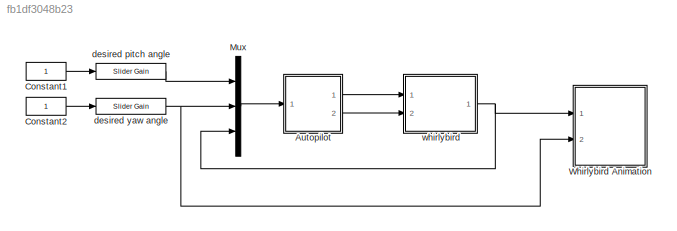
MODEL slx_fb1df3048b23
KIND model
CONFIG InitFcn = param
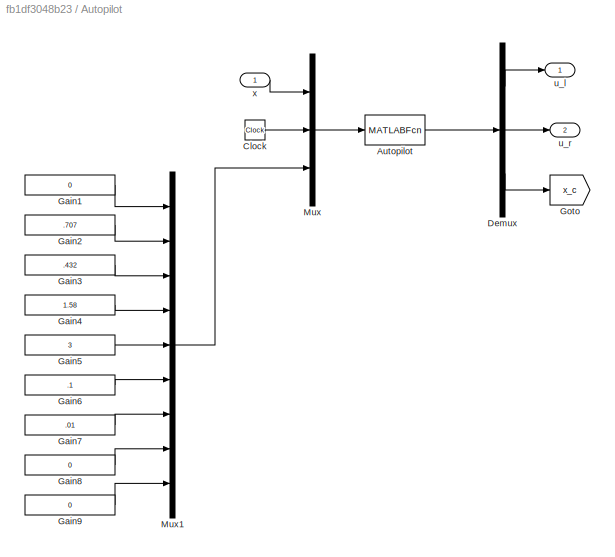
BLOCK [SubSystem] Autopilot
  FunctionWithSeparateData = off
  MaskHideContents = off
  MinAlgLoopOccurrences = off
  Opaque = off
  Ports = [1, 2]
  PropExecContextOutsideSubsystem = off
  RTWSystemCode = Auto
  RequestExecContextInheritance = off
BLOCK [MATLABFcn] Autopilot/Autopilot
  MATLABFcn = autopilot(u)
  OutputDimensions = 2+10
  Ports = [1, 1]
  SampleTime = P.Ts
BLOCK [Clock] Autopilot/Clock
BLOCK [Demux] Autopilot/Demux
  DisplayOption = bar
  Outputs = [1;1;10]
  Ports = [1, 3]
BLOCK [Constant] Autopilot/Gain1
  Value = 0
  VectorParams1D = off
BLOCK [Constant] Autopilot/Gain2
  Value = .707
  VectorParams1D = off
BLOCK [Constant] Autopilot/Gain3
  Value = .432
  VectorParams1D = off
BLOCK [Constant] Autopilot/Gain4
  Value = 1.58
  VectorParams1D = off
BLOCK [Constant] Autopilot/Gain5
  Value = 3
  VectorParams1D = off
BLOCK [Constant] Autopilot/Gain6
  Value = .1
  VectorParams1D = off
BLOCK [Constant] Autopilot/Gain7
  Value = .01
  VectorParams1D = off
BLOCK [Constant] Autopilot/Gain8
  Value = 0
  VectorParams1D = off
BLOCK [Constant] Autopilot/Gain9
  Value = 0
  VectorParams1D = off
BLOCK [Goto] Autopilot/Goto
  GotoTag = x_c
  TagVisibility = global
BLOCK [Mux] Autopilot/Mux
  DisplayOption = bar
  Inputs = 3
  Ports = [3, 1]
BLOCK [Mux] Autopilot/Mux1
  DisplayOption = bar
  Inputs = 9
  Ports = [9, 1]
BLOCK [Outport] Autopilot/u_l
  IconDisplay = Port number
BLOCK [Outport] Autopilot/u_r
  IconDisplay = Port number
  Port = 2
BLOCK [Inport] Autopilot/x
  IconDisplay = Port number
BLOCK [Constant] Constant1
BLOCK [Constant] Constant2
BLOCK [Mux] Mux
  DisplayOption = bar
  Inputs = 3
  Ports = [3, 1]
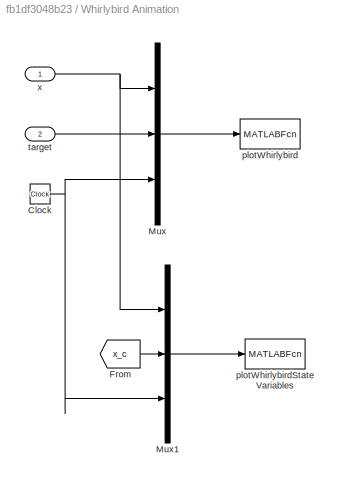
BLOCK [SubSystem] Whirlybird Animation
  FunctionWithSeparateData = off
  MaskHideContents = off
  MinAlgLoopOccurrences = off
  Opaque = off
  Ports = [2]
  PropExecContextOutsideSubsystem = off
  RTWSystemCode = Auto
  RequestExecContextInheritance = off
BLOCK [Clock] Whirlybird Animation/Clock
BLOCK [From] Whirlybird Animation/From
  CloseFcn = tagdialog Close
  GotoTag = x_c
  TagVisibility = global
BLOCK [Mux] Whirlybird Animation/Mux
  DisplayOption = bar
  Inputs = 3
  Ports = [3, 1]
BLOCK [Mux] Whirlybird Animation/Mux1
  DisplayOption = bar
  Inputs = 3
  Ports = [3, 1]
BLOCK [MATLABFcn] Whirlybird Animation/plotWhirlybird
  MATLABFcn = plotWhirlybird(u)
  OutputDimensions = 0
  Ports = [1]
  SampleTime = 0.1
BLOCK [MATLABFcn] Whirlybird Animation/plotWhirlybirdState Variables
  MATLABFcn = plotwhirlybirdstatevariables(u)
  OutputDimensions = 0
  Ports = [1]
  SampleTime = 0.1
BLOCK [Inport] Whirlybird Animation/target
  IconDisplay = Port number
  Port = 2
BLOCK [Inport] Whirlybird Animation/x
  IconDisplay = Port number
BLOCK [Reference] desired pitch angle  REF=simulink/Math
Operations/Slider
Gain
  Ports = [1, 1]
  SourceBlock = simulink/Math\nOperations/Slider\nGain
  SourceType = Slider Gain
  gain = -2.9032
  high = 30
  low = -30
BLOCK [Reference] desired yaw angle  REF=simulink/Math
Operations/Slider
Gain
  Ports = [1, 1]
  SourceBlock = simulink/Math\nOperations/Slider\nGain
  SourceType = Slider Gain
  gain = -16.129
  high = 100
  low = -100
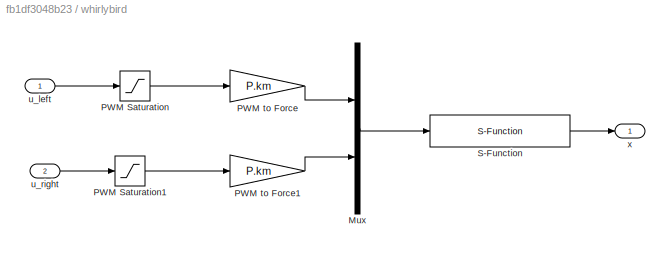
BLOCK [SubSystem] whirlybird
  FunctionWithSeparateData = off
  MaskHideContents = off
  MinAlgLoopOccurrences = off
  Opaque = off
  Ports = [2, 1]
  PropExecContextOutsideSubsystem = off
  RTWSystemCode = Auto
  RequestExecContextInheritance = off
BLOCK [Mux] whirlybird/Mux
  DisplayOption = bar
  Inputs = 2
  Ports = [2, 1]
BLOCK [Saturate] whirlybird/PWM Saturation
  InputPortMap = u0
  LowerLimit = 0
  Ports = [1, 1]
  UpperLimit = 100
BLOCK [Saturate] whirlybird/PWM Saturation1
  InputPortMap = u0
  LowerLimit = 0
  Ports = [1, 1]
  UpperLimit = 100
BLOCK [Gain] whirlybird/PWM to Force
  Gain = P.km
  OutDataTypeStr = Inherit: Inherit via internal rule
  ParamDataTypeStr = Inherit: Inherit via internal rule
  SaturateOnIntegerOverflow = off
BLOCK [Gain] whirlybird/PWM to Force1
  Gain = P.km
  OutDataTypeStr = Inherit: Inherit via internal rule
  ParamDataTypeStr = Inherit: Inherit via internal rule
  SaturateOnIntegerOverflow = off
BLOCK [S-Function] whirlybird/S-Function
  EnableBusSupport = off
  FunctionName = whirlybird_dynamics
  Parameters = P
  Ports = [1, 1]
BLOCK [Inport] whirlybird/u_left
  IconDisplay = Port number
BLOCK [Inport] whirlybird/u_right
  IconDisplay = Port number
  Port = 2
BLOCK [Outport] whirlybird/x
  IconDisplay = Port number
LINE Autopilot/Autopilot:1 -> Autopilot/Demux:1
LINE Autopilot/Clock:1 -> Autopilot/Mux:2
LINE Autopilot/Demux:1 -> Autopilot/u_l:1
LINE Autopilot/Demux:2 -> Autopilot/u_r:1
LINE Autopilot/Demux:3 -> Autopilot/Goto:1
LINE Autopilot/Gain1:1 -> Autopilot/Mux1:1
LINE Autopilot/Gain2:1 -> Autopilot/Mux1:2
LINE Autopilot/Gain3:1 -> Autopilot/Mux1:3
LINE Autopilot/Gain4:1 -> Autopilot/Mux1:4
LINE Autopilot/Gain5:1 -> Autopilot/Mux1:5
LINE Autopilot/Gain6:1 -> Autopilot/Mux1:6
LINE Autopilot/Gain7:1 -> Autopilot/Mux1:7
LINE Autopilot/Gain8:1 -> Autopilot/Mux1:8
LINE Autopilot/Gain9:1 -> Autopilot/Mux1:9
LINE Autopilot/Mux1:1 -> Autopilot/Mux:3
LINE Autopilot/Mux:1 -> Autopilot/Autopilot:1
LINE Autopilot/x:1 -> Autopilot/Mux:1
LINE Autopilot:1 -> whirlybird:1
LINE Autopilot:2 -> whirlybird:2
LINE Constant1:1 -> desired pitch angle:1
LINE Constant2:1 -> desired yaw angle:1
LINE Mux:1 -> Autopilot:1
NET Whirlybird Animation/Clock:1 -> Whirlybird Animation/Mux1:3, Whirlybird Animation/Mux:3
LINE Whirlybird Animation/From:1 -> Whirlybird Animation/Mux1:2
LINE Whirlybird Animation/Mux1:1 -> Whirlybird Animation/plotWhirlybirdState Variables:1
LINE Whirlybird Animation/Mux:1 -> Whirlybird Animation/plotWhirlybird:1
LINE Whirlybird Animation/target:1 -> Whirlybird Animation/Mux:2
NET Whirlybird Animation/x:1 -> Whirlybird Animation/Mux1:1, Whirlybird Animation/Mux:1
LINE desired pitch angle:1 -> Mux:1
NET desired yaw angle:1 -> Mux:2, Whirlybird Animation:2
LINE whirlybird/Mux:1 -> whirlybird/S-Function:1
LINE whirlybird/PWM Saturation1:1 -> whirlybird/PWM to Force1:1
LINE whirlybird/PWM Saturation:1 -> whirlybird/PWM to Force:1
LINE whirlybird/PWM to Force1:1 -> whirlybird/Mux:2
LINE whirlybird/PWM to Force:1 -> whirlybird/Mux:1
LINE whirlybird/S-Function:1 -> whirlybird/x:1
LINE whirlybird/u_left:1 -> whirlybird/PWM Saturation:1
LINE whirlybird/u_right:1 -> whirlybird/PWM Saturation1:1
NET whirlybird:1 -> Mux:3, Whirlybird Animation:1
note: NET lines group one-source signal fan-out (src -> all destinations, sorted); 1:1 wires keep LINE
